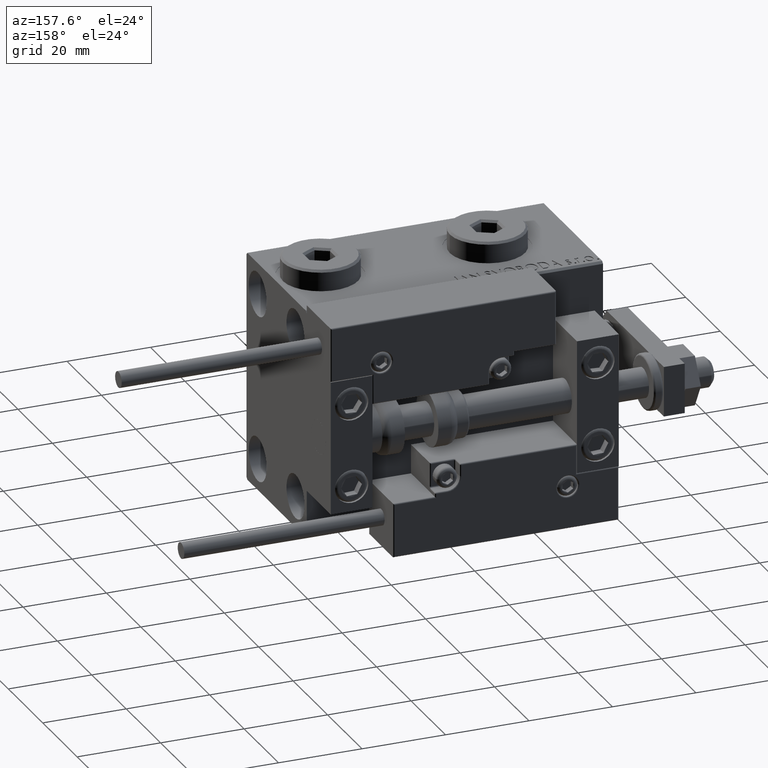
[diagram: clean part render]
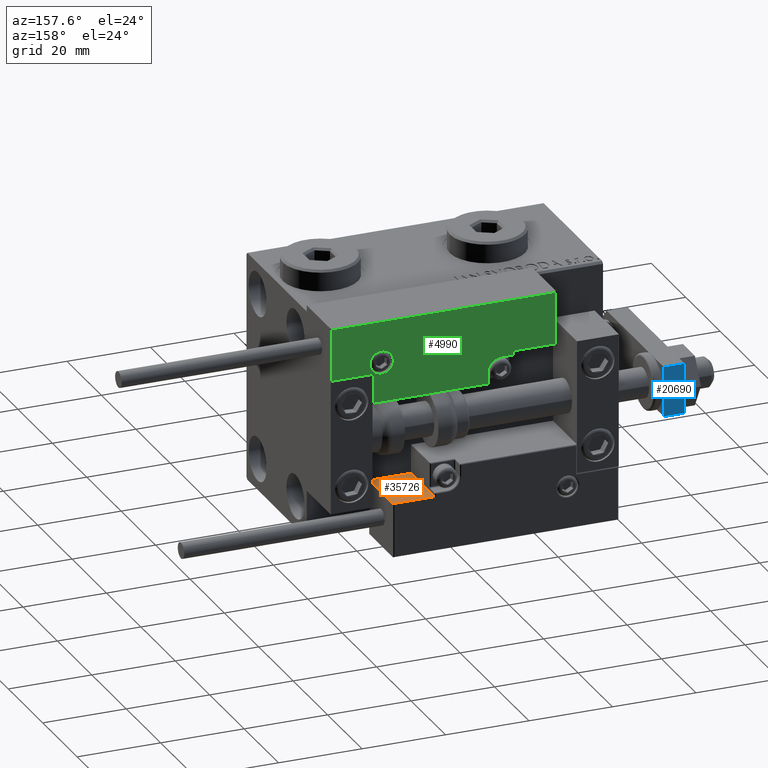
[diagram: same view with three faces highlighted in distinct colors, each labeled with its STEP entity id]
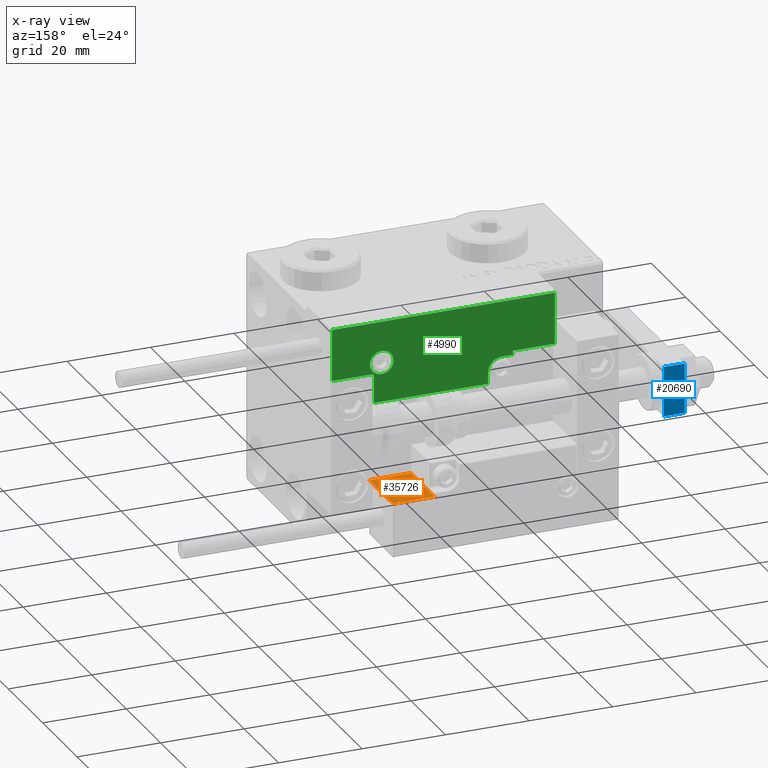
[diagram: x-ray of the same camera — body ghosted, the three highlighted faces saturated]
A machine part, auxiliary view with three faces highlighted in distinct colors.
The next image is the same camera in x-ray (body ghosted, the three faces saturated) — at least one of them is partly hidden behind the body in this view.
Their STEP definitions:

[orange] entity #35726 — the highlighted planar face has unit normal (-0, -0, -1).
#352 = CARTESIAN_POINT ( 'NONE',  ( 17.00000000000000000, 7.000000000000009770, 0.000000000000000000 ) ) ;
#707 = DIRECTION ( 'NONE',  ( -0.000000000000000000, -0.000000000000000000, -1.000000000000000000 ) ) ;
#2030 = VECTOR ( 'NONE', #11830, 1000.000000000000000 ) ;
#2034 = VECTOR ( 'NONE', #16994, 1000.000000000000000 ) ;
#2676 = FACE_OUTER_BOUND ( 'NONE', #29405, .T. ) ;
#7091 = VERTEX_POINT ( 'NONE', #16620 ) ;
#7121 = EDGE_CURVE ( 'NONE', #7091, #44956, #12970, .T. ) ;
#9416 = LINE ( 'NONE', #41206, #2034 ) ;
#11830 = DIRECTION ( 'NONE',  ( -0.000000000000000000, -0.000000000000000000, -1.000000000000000000 ) ) ;
#12970 = LINE ( 'NONE', #48934, #20071 ) ;
#14796 = EDGE_CURVE ( 'NONE', #16166, #7091, #9416, .T. ) ;
#16166 = VERTEX_POINT ( 'NONE', #29719 ) ;
#16620 = CARTESIAN_POINT ( 'NONE',  ( 17.00000000000000000, 7.000000000000009770, 13.70000000000000107 ) ) ;
#16994 = DIRECTION ( 'NONE',  ( -1.000000000000000000, 1.734723475976796001E-16, -0.000000000000000000 ) ) ;
#17169 = EDGE_CURVE ( 'NONE', #16166, #19782, #39448, .T. ) ;
#18574 = DIRECTION ( 'NONE',  ( 1.734723475976796001E-16, 1.000000000000000000, -0.000000000000000000 ) ) ;
#19782 = VERTEX_POINT ( 'NONE', #22259 ) ;
#20071 = VECTOR ( 'NONE', #707, 1000.000000000000000 ) ;
#22259 = CARTESIAN_POINT ( 'NONE',  ( 27.00000000000006395, 7.000000000000007994, 0.000000000000000000 ) ) ;
#22508 = CARTESIAN_POINT ( 'NONE',  ( 27.00000000000006395, 7.000000000000007994, 14.00000000000000000 ) ) ;
#22998 = CARTESIAN_POINT ( 'NONE',  ( 17.00000000000000000, 7.000000000000009770, 14.00000000000000000 ) ) ;
#23020 = AXIS2_PLACEMENT_3D ( 'NONE', #22998, #18574, #43066 ) ;
#23168 = ORIENTED_EDGE ( 'NONE', *, *, #27202, .T. ) ;
#26122 = PLANE ( 'NONE',  #23020 ) ;
#26731 = ORIENTED_EDGE ( 'NONE', *, *, #17169, .F. ) ;
#27202 = EDGE_CURVE ( 'NONE', #44956, #19782, #34150, .T. ) ;
#29405 = EDGE_LOOP ( 'NONE', ( #26731, #30475, #31875, #23168 ) ) ;
#29719 = CARTESIAN_POINT ( 'NONE',  ( 27.00000000000006395, 7.000000000000007994, 13.70000000000000107 ) ) ;
#30475 = ORIENTED_EDGE ( 'NONE', *, *, #14796, .T. ) ;
#31875 = ORIENTED_EDGE ( 'NONE', *, *, #7121, .T. ) ;
#34150 = LINE ( 'NONE', #38327, #41833 ) ;
#35726 = ADVANCED_FACE ( 'NONE', ( #2676 ), #26122, .F. ) ;
#38327 = CARTESIAN_POINT ( 'NONE',  ( 17.00000000000000000, 7.000000000000009770, 0.000000000000000000 ) ) ;
#39448 = LINE ( 'NONE', #22508, #2030 ) ;
#41206 = CARTESIAN_POINT ( 'NONE',  ( 17.00000000000000000, 7.000000000000009770, 13.70000000000000107 ) ) ;
#41833 = VECTOR ( 'NONE', #50351, 1000.000000000000000 ) ;
#43066 = DIRECTION ( 'NONE',  ( -1.000000000000000000, 1.734723475976796001E-16, 0.000000000000000000 ) ) ;
#44956 = VERTEX_POINT ( 'NONE', #352 ) ;
#48934 = CARTESIAN_POINT ( 'NONE',  ( 17.00000000000000000, 7.000000000000009770, 14.00000000000000000 ) ) ;
#50351 = DIRECTION ( 'NONE',  ( 1.000000000000000000, -1.734723475976796001E-16, 0.000000000000000000 ) ) ;

[blue] entity #20690 — the highlighted planar face has unit normal (0, -1, 0).
#3444 = EDGE_CURVE ( 'NONE', #37068, #14074, #27253, .T. ) ;
#3503 = ORIENTED_EDGE ( 'NONE', *, *, #36517, .T. ) ;
#4068 = PLANE ( 'NONE',  #30085 ) ;
#5863 = EDGE_CURVE ( 'NONE', #14074, #22042, #26728, .T. ) ;
#7342 = CARTESIAN_POINT ( 'NONE',  ( 6.000000000000008882, 36.00000000000000000, 5.000000000000000000 ) ) ;
#10620 = VERTEX_POINT ( 'NONE', #32221 ) ;
#10652 = LINE ( 'NONE', #18468, #46344 ) ;
#11875 = CARTESIAN_POINT ( 'NONE',  ( 6.000000000000008882, 36.00000000000000000, 5.000000000000000000 ) ) ;
#13525 = DIRECTION ( 'NONE',  ( -1.000000000000000000, 0.000000000000000000, 0.000000000000000000 ) ) ;
#13789 = CARTESIAN_POINT ( 'NONE',  ( 6.000000000000008882, 36.00000000000000000, 0.000000000000000000 ) ) ;
#14074 = VERTEX_POINT ( 'NONE', #43515 ) ;
#15222 = EDGE_CURVE ( 'NONE', #10620, #22042, #41906, .T. ) ;
#16074 = FACE_OUTER_BOUND ( 'NONE', #24385, .T. ) ;
#18468 = CARTESIAN_POINT ( 'NONE',  ( 6.000000000000008882, 36.00000000000000000, 5.000000000000000000 ) ) ;
#19402 = ORIENTED_EDGE ( 'NONE', *, *, #15222, .T. ) ;
#19593 = ORIENTED_EDGE ( 'NONE', *, *, #5863, .F. ) ;
#20690 = ADVANCED_FACE ( 'NONE', ( #16074 ), #4068, .F. ) ;
#22042 = VERTEX_POINT ( 'NONE', #49936 ) ;
#23078 = CARTESIAN_POINT ( 'NONE',  ( -5.999999999999991118, 36.00000000000000000, 5.000000000000000000 ) ) ;
#23362 = CARTESIAN_POINT ( 'NONE',  ( 6.000000000000008882, 36.00000000000000000, 5.000000000000000000 ) ) ;
#24385 = EDGE_LOOP ( 'NONE', ( #19402, #19593, #45260, #3503 ) ) ;
#24386 = DIRECTION ( 'NONE',  ( 0.000000000000000000, -0.000000000000000000, -1.000000000000000000 ) ) ;
#26728 = LINE ( 'NONE', #23078, #36652 ) ;
#27253 = LINE ( 'NONE', #11875, #44997 ) ;
#27759 = DIRECTION ( 'NONE',  ( -1.000000000000000000, 0.000000000000000000, 0.000000000000000000 ) ) ;
#30085 = AXIS2_PLACEMENT_3D ( 'NONE', #23362, #47879, #24386 ) ;
#32221 = CARTESIAN_POINT ( 'NONE',  ( 6.000000000000008882, 36.00000000000000000, 0.000000000000000000 ) ) ;
#33679 = VECTOR ( 'NONE', #13525, 1000.000000000000000 ) ;
#34351 = DIRECTION ( 'NONE',  ( -0.000000000000000000, -0.000000000000000000, -1.000000000000000000 ) ) ;
#36517 = EDGE_CURVE ( 'NONE', #37068, #10620, #10652, .T. ) ;
#36652 = VECTOR ( 'NONE', #38449, 1000.000000000000000 ) ;
#37068 = VERTEX_POINT ( 'NONE', #7342 ) ;
#38449 = DIRECTION ( 'NONE',  ( -0.000000000000000000, -0.000000000000000000, -1.000000000000000000 ) ) ;
#41906 = LINE ( 'NONE', #13789, #33679 ) ;
#43515 = CARTESIAN_POINT ( 'NONE',  ( -5.999999999999991118, 36.00000000000000000, 5.000000000000000000 ) ) ;
#44997 = VECTOR ( 'NONE', #27759, 1000.000000000000000 ) ;
#45260 = ORIENTED_EDGE ( 'NONE', *, *, #3444, .F. ) ;
#46344 = VECTOR ( 'NONE', #34351, 1000.000000000000000 ) ;
#47879 = DIRECTION ( 'NONE',  ( 0.000000000000000000, -1.000000000000000000, 0.000000000000000000 ) ) ;
#49936 = CARTESIAN_POINT ( 'NONE',  ( -5.999999999999991118, 36.00000000000000000, 0.000000000000000000 ) ) ;

[green] entity #4990 — the highlighted planar face has unit normal (0, 1, -0).
#24 = LINE ( 'NONE', #39387, #17751 ) ;
#43 = VERTEX_POINT ( 'NONE', #46059 ) ;
#112 = CARTESIAN_POINT ( 'NONE',  ( 0.000000000000000000, 0.000000000000000000, 14.00000000000000000 ) ) ;
#916 = VECTOR ( 'NONE', #11790, 1000.000000000000000 ) ;
#1487 = EDGE_CURVE ( 'NONE', #8865, #2902, #44139, .T. ) ;
#2498 = CARTESIAN_POINT ( 'NONE',  ( -16.69999999999999218, 7.300000000000003375, 14.00000000000000000 ) ) ;
#2902 = VERTEX_POINT ( 'NONE', #35184 ) ;
#3754 = CARTESIAN_POINT ( 'NONE',  ( 10.69999999999999929, 3.000000000000003109, 14.00000000000000000 ) ) ;
#3976 = ORIENTED_EDGE ( 'NONE', *, *, #1487, .T. ) ;
#4990 = ADVANCED_FACE ( 'NONE', ( #31660, #44147 ), #47576, .T. ) ;
#5019 = ORIENTED_EDGE ( 'NONE', *, *, #34807, .T. ) ;
#5955 = VERTEX_POINT ( 'NONE', #2498 ) ;
#6828 = VERTEX_POINT ( 'NONE', #46099 ) ;
#7706 = LINE ( 'NONE', #15283, #19313 ) ;
#8865 = VERTEX_POINT ( 'NONE', #22667 ) ;
#10087 = ORIENTED_EDGE ( 'NONE', *, *, #10837, .T. ) ;
#10363 = EDGE_LOOP ( 'NONE', ( #3976, #16828 ) ) ;
#10467 = ORIENTED_EDGE ( 'NONE', *, *, #22416, .T. ) ;
#10821 = CARTESIAN_POINT ( 'NONE',  ( 13.99999999999999822, 6.300000000000001599, 14.00000000000000000 ) ) ;
#10837 = EDGE_CURVE ( 'NONE', #12705, #6828, #29470, .T. ) ;
#11027 = LINE ( 'NONE', #42815, #916 ) ;
#11790 = DIRECTION ( 'NONE',  ( -1.000000000000000000, 6.424901762877063495E-17, -0.000000000000000000 ) ) ;
#12258 = ORIENTED_EDGE ( 'NONE', *, *, #31239, .T. ) ;
#12592 = ORIENTED_EDGE ( 'NONE', *, *, #27986, .T. ) ;
#12705 = VERTEX_POINT ( 'NONE', #18082 ) ;
#13340 = AXIS2_PLACEMENT_3D ( 'NONE', #112, #31923, #47319 ) ;
#13341 = VERTEX_POINT ( 'NONE', #10821 ) ;
#14331 = ORIENTED_EDGE ( 'NONE', *, *, #27168, .T. ) ;
#14783 = ORIENTED_EDGE ( 'NONE', *, *, #22266, .T. ) ;
#15283 = CARTESIAN_POINT ( 'NONE',  ( 16.69999999999999929, 7.000000000000009770, 14.00000000000000000 ) ) ;
#15429 = CARTESIAN_POINT ( 'NONE',  ( 13.99999999999999822, 3.000000000000002665, 14.00000000000000000 ) ) ;
#16828 = ORIENTED_EDGE ( 'NONE', *, *, #48412, .T. ) ;
#16892 = VECTOR ( 'NONE', #34422, 1000.000000000000000 ) ;
#16982 = CARTESIAN_POINT ( 'NONE',  ( 27.00000000000006395, 7.300000000000007816, 14.00000000000000000 ) ) ;
#17046 = VECTOR ( 'NONE', #33677, 1000.000000000000000 ) ;
#17736 = CARTESIAN_POINT ( 'NONE',  ( 26.70000000000006324, 20.00000000000001776, 14.00000000000000000 ) ) ;
#17751 = VECTOR ( 'NONE', #27914, 1000.000000000000000 ) ;
#17803 = CARTESIAN_POINT ( 'NONE',  ( -26.69999999999994600, 7.000000000000005329, 14.00000000000000000 ) ) ;
#17910 = ORIENTED_EDGE ( 'NONE', *, *, #20043, .T. ) ;
#17956 = VERTEX_POINT ( 'NONE', #34830 ) ;
#18027 = LINE ( 'NONE', #18807, #16892 ) ;
#18082 = CARTESIAN_POINT ( 'NONE',  ( 16.69999999999999929, 7.300000000000009592, 14.00000000000000000 ) ) ;
#18496 = DIRECTION ( 'NONE',  ( 0.000000000000000000, 1.000000000000000000, -0.000000000000000000 ) ) ;
#18807 = CARTESIAN_POINT ( 'NONE',  ( -16.99999999999999289, 7.300000000000003375, 14.00000000000000000 ) ) ;
#19313 = VECTOR ( 'NONE', #31169, 1000.000000000000000 ) ;
#20043 = EDGE_CURVE ( 'NONE', #24370, #43, #43361, .T. ) ;
#20195 = LINE ( 'NONE', #28014, #46820 ) ;
#21565 = CARTESIAN_POINT ( 'NONE',  ( -26.69999999999993534, 19.70000000000002061, 14.00000000000000000 ) ) ;
#21890 = VECTOR ( 'NONE', #33368, 1000.000000000000000 ) ;
#21972 = DIRECTION ( 'NONE',  ( 0.000000000000000000, -0.000000000000000000, -1.000000000000000000 ) ) ;
#22255 = AXIS2_PLACEMENT_3D ( 'NONE', #15429, #31313, #47226 ) ;
#22266 = EDGE_CURVE ( 'NONE', #17956, #12705, #7706, .T. ) ;
#22416 = EDGE_CURVE ( 'NONE', #13341, #17956, #20195, .T. ) ;
#22667 = CARTESIAN_POINT ( 'NONE',  ( -11.99999999999994849, 9.800000000000004263, 14.00000000000000000 ) ) ;
#24127 = CIRCLE ( 'NONE', #35807, 2.800000000000000266 ) ;
#24210 = VECTOR ( 'NONE', #31898, 1000.000000000000000 ) ;
#24370 = VERTEX_POINT ( 'NONE', #50948 ) ;
#26280 = VECTOR ( 'NONE', #35021, 1000.000000000000000 ) ;
#26827 = CARTESIAN_POINT ( 'NONE',  ( -16.69999999999999218, 0.3000000000000032085, 14.00000000000000000 ) ) ;
#27053 = VERTEX_POINT ( 'NONE', #31428 ) ;
#27168 = EDGE_CURVE ( 'NONE', #28280, #5955, #18027, .T. ) ;
#27914 = DIRECTION ( 'NONE',  ( 0.000000000000000000, -1.000000000000000000, 0.000000000000000000 ) ) ;
#27986 = EDGE_CURVE ( 'NONE', #5955, #47887, #24, .T. ) ;
#28014 = CARTESIAN_POINT ( 'NONE',  ( 17.00000000000000000, 6.300000000000003375, 14.00000000000000000 ) ) ;
#28280 = VERTEX_POINT ( 'NONE', #42988 ) ;
#28555 = DIRECTION ( 'NONE',  ( 0.000000000000000000, -0.000000000000000000, -1.000000000000000000 ) ) ;
#29470 = LINE ( 'NONE', #16982, #21890 ) ;
#29744 = EDGE_LOOP ( 'NONE', ( #12592, #5019, #17910, #43532, #10467, #14783, #10087, #32507, #39917, #12258, #14331 ) ) ;
#30487 = LINE ( 'NONE', #17736, #51183 ) ;
#30867 = LINE ( 'NONE', #38688, #26280 ) ;
#31169 = DIRECTION ( 'NONE',  ( 9.912705577010318647E-16, 1.000000000000000000, 0.000000000000000000 ) ) ;
#31239 = EDGE_CURVE ( 'NONE', #31798, #28280, #33164, .T. ) ;
#31313 = DIRECTION ( 'NONE',  ( 0.000000000000000000, -0.000000000000000000, -1.000000000000000000 ) ) ;
#31428 = CARTESIAN_POINT ( 'NONE',  ( 26.70000000000006324, 19.70000000000001705, 14.00000000000000000 ) ) ;
#31660 = FACE_BOUND ( 'NONE', #10363, .T. ) ;
#31664 = EDGE_CURVE ( 'NONE', #6828, #27053, #30487, .T. ) ;
#31798 = VERTEX_POINT ( 'NONE', #21565 ) ;
#31898 = DIRECTION ( 'NONE',  ( -0.000000000000000000, 1.000000000000000000, -0.000000000000000000 ) ) ;
#31923 = DIRECTION ( 'NONE',  ( -0.000000000000000000, 0.000000000000000000, 1.000000000000000000 ) ) ;
#32460 = DIRECTION ( 'NONE',  ( 1.000000000000000000, 0.000000000000000000, 0.000000000000000000 ) ) ;
#32507 = ORIENTED_EDGE ( 'NONE', *, *, #31664, .T. ) ;
#33164 = LINE ( 'NONE', #17803, #17046 ) ;
#33368 = DIRECTION ( 'NONE',  ( 1.000000000000000000, -1.734723475976796001E-16, 0.000000000000000000 ) ) ;
#33677 = DIRECTION ( 'NONE',  ( -8.006416042969869188E-16, -1.000000000000000000, 0.000000000000000000 ) ) ;
#34422 = DIRECTION ( 'NONE',  ( 1.000000000000000000, -1.734723475976815230E-16, 0.000000000000000000 ) ) ;
#34807 = EDGE_CURVE ( 'NONE', #47887, #24370, #30867, .T. ) ;
#34830 = CARTESIAN_POINT ( 'NONE',  ( 16.69999999999999929, 6.300000000000003375, 14.00000000000000000 ) ) ;
#35021 = DIRECTION ( 'NONE',  ( 1.000000000000000000, -0.000000000000000000, 0.000000000000000000 ) ) ;
#35184 = CARTESIAN_POINT ( 'NONE',  ( -17.59999999999994813, 9.800000000000004263, 14.00000000000000000 ) ) ;
#35807 = AXIS2_PLACEMENT_3D ( 'NONE', #36119, #28555, #32460 ) ;
#36119 = CARTESIAN_POINT ( 'NONE',  ( -14.79999999999994920, 9.800000000000004263, 14.00000000000000000 ) ) ;
#36833 = CARTESIAN_POINT ( 'NONE',  ( -14.79999999999994920, 9.800000000000004263, 14.00000000000000000 ) ) ;
#38688 = CARTESIAN_POINT ( 'NONE',  ( 11.00000000000000000, 0.3000000000000032085, 14.00000000000000000 ) ) ;
#39387 = CARTESIAN_POINT ( 'NONE',  ( -16.69999999999999218, 3.252606517456513302E-15, 14.00000000000000000 ) ) ;
#39917 = ORIENTED_EDGE ( 'NONE', *, *, #49931, .T. ) ;
#40740 = DIRECTION ( 'NONE',  ( 1.000000000000000000, 0.000000000000000000, 0.000000000000000000 ) ) ;
#40756 = DIRECTION ( 'NONE',  ( 1.000000000000000000, 5.782411586589357639E-16, -0.000000000000000000 ) ) ;
#40788 = AXIS2_PLACEMENT_3D ( 'NONE', #36833, #21972, #40740 ) ;
#42061 = EDGE_CURVE ( 'NONE', #43, #13341, #44728, .T. ) ;
#42815 = CARTESIAN_POINT ( 'NONE',  ( -26.99999999999993605, 19.70000000000002061, 14.00000000000000000 ) ) ;
#42988 = CARTESIAN_POINT ( 'NONE',  ( -26.69999999999994600, 7.300000000000005151, 14.00000000000000000 ) ) ;
#43361 = LINE ( 'NONE', #3754, #24210 ) ;
#43532 = ORIENTED_EDGE ( 'NONE', *, *, #42061, .T. ) ;
#44139 = CIRCLE ( 'NONE', #40788, 2.800000000000000266 ) ;
#44147 = FACE_OUTER_BOUND ( 'NONE', #29744, .T. ) ;
#44728 = CIRCLE ( 'NONE', #22255, 3.299999999999997158 ) ;
#46059 = CARTESIAN_POINT ( 'NONE',  ( 10.69999999999999929, 3.000000000000003109, 14.00000000000000000 ) ) ;
#46099 = CARTESIAN_POINT ( 'NONE',  ( 26.70000000000006324, 7.300000000000007816, 14.00000000000000000 ) ) ;
#46820 = VECTOR ( 'NONE', #40756, 1000.000000000000000 ) ;
#47226 = DIRECTION ( 'NONE',  ( 1.000000000000000000, 0.000000000000000000, 0.000000000000000000 ) ) ;
#47319 = DIRECTION ( 'NONE',  ( 1.000000000000000000, 0.000000000000000000, 0.000000000000000000 ) ) ;
#47576 = PLANE ( 'NONE',  #13340 ) ;
#47887 = VERTEX_POINT ( 'NONE', #26827 ) ;
#48412 = EDGE_CURVE ( 'NONE', #2902, #8865, #24127, .T. ) ;
#49931 = EDGE_CURVE ( 'NONE', #27053, #31798, #11027, .T. ) ;
#50948 = CARTESIAN_POINT ( 'NONE',  ( 10.69999999999999929, 0.3000000000000032085, 14.00000000000000000 ) ) ;
#51183 = VECTOR ( 'NONE', #18496, 1000.000000000000000 ) ;